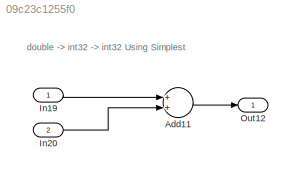
MODEL slx_09c23c1255f0
KIND model
CONFIG AbsTol = auto
CONFIG EnableMultiTasking = off
CONFIG FixedStep = 0.200000
CONFIG MaxStep = auto
CONFIG MinStep = auto
CONFIG RelTol = 1e-3
CONFIG SampleTimeConstraint = Unconstrained
CONFIG Solver = FixedStepDiscrete
CONFIG SolverName = FixedStepDiscrete
CONFIG StartTime = 0.0
CONFIG StopTime = 10.0
BLOCK [Sum] Add11
  AccumDataTypeStr = int32
  InputSameDT = off
  OutDataTypeStr = int32
  Ports = [2, 1]
  RndMeth = Simplest
  SaturateOnIntegerOverflow = off
BLOCK [Inport] In19
  IconDisplay = Port number
  OutDataTypeStr = double
BLOCK [Inport] In20
  IconDisplay = Port number
  OutDataTypeStr = int32
  Port = 2
BLOCK [Outport] Out12
  IconDisplay = Port number
ANNOTATION (root): double -> int32 -> int32 Using Simplest
LINE Add11:1 -> Out12:1
LINE In19:1 -> Add11:1
LINE In20:1 -> Add11:2
